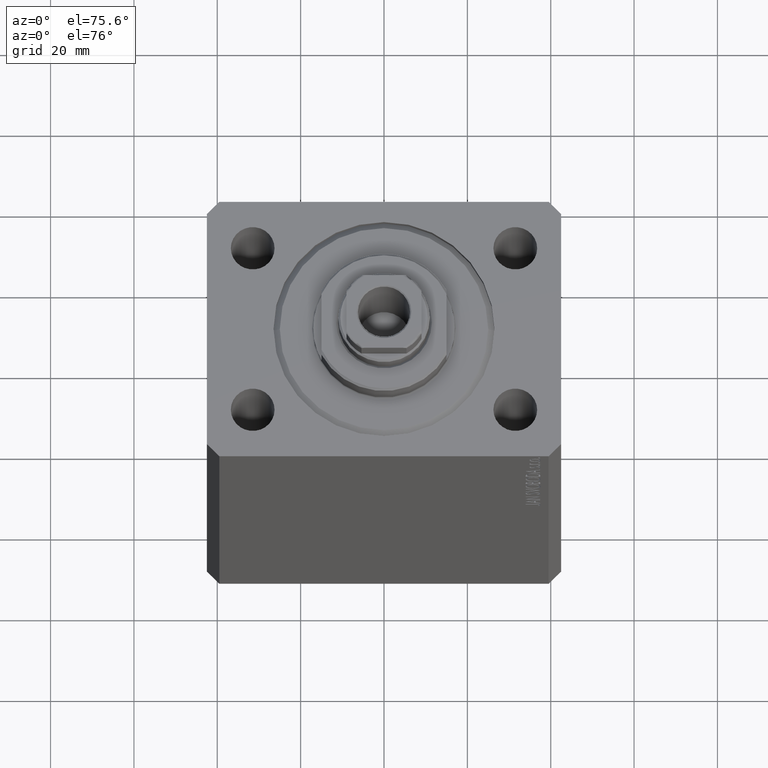
[diagram: clean part render]
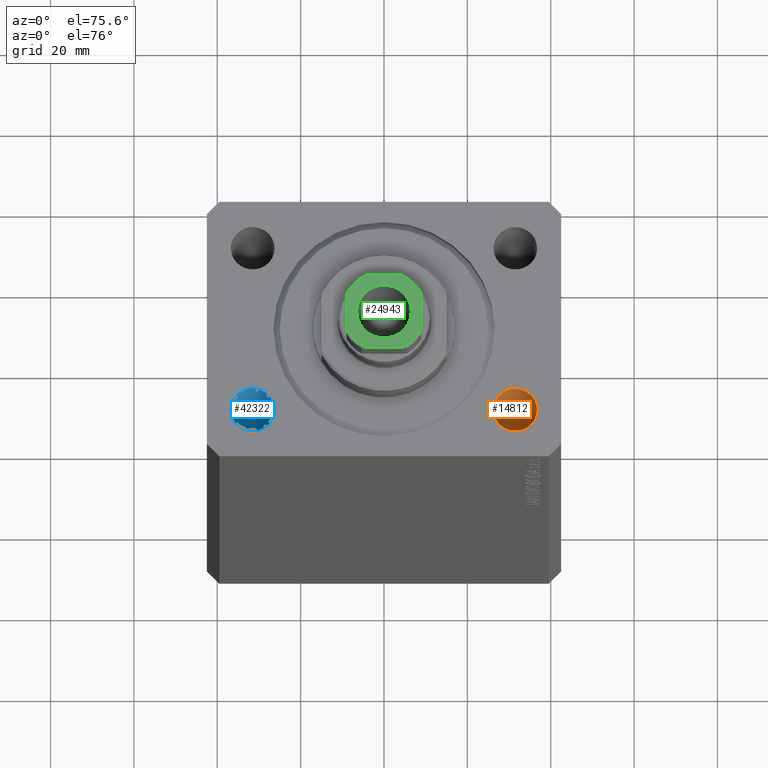
[diagram: same view with three faces highlighted in distinct colors, each labeled with its STEP entity id]
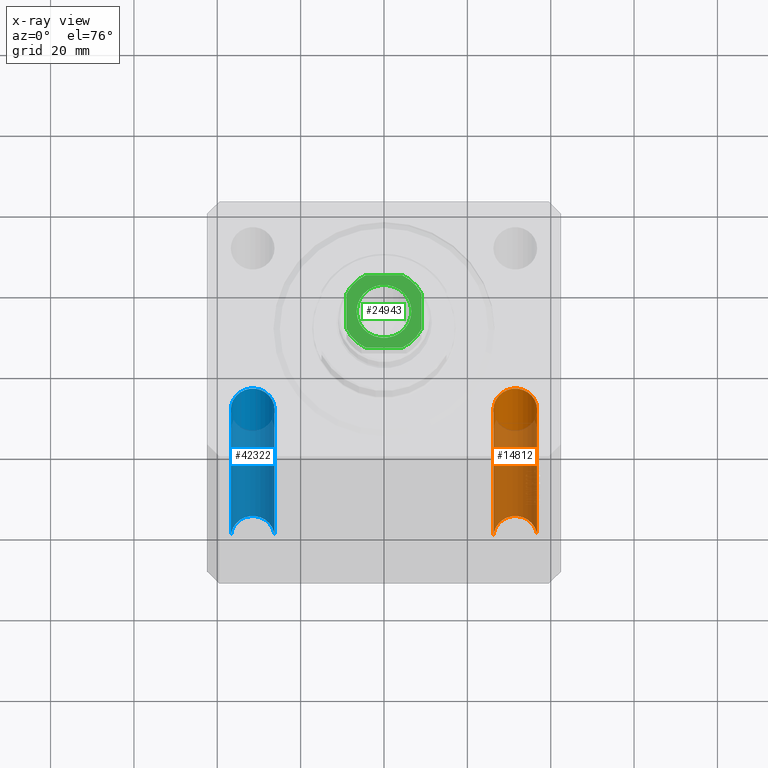
[diagram: x-ray of the same camera — body ghosted, the three highlighted faces saturated]
A machine part, auxiliary view with three faces highlighted in distinct colors.
The next image is the same camera in x-ray (body ghosted, the three faces saturated) — at least one of them is partly hidden behind the body in this view.
Their STEP definitions:

[orange] entity #14812 — the highlighted cylindrical surface (edge-blend (fillet) strip) has radius 5.25 mm, axis along (0, 0, 1).
#965 = CARTESIAN_POINT ( 'NONE',  ( 26.24999999999999645, -20.00000000000000355, 0.000000000000000000 ) ) ;
#1013 = CARTESIAN_POINT ( 'NONE',  ( 36.74999999999999289, -20.00000000000000355, -123.0000000000000000 ) ) ;
#2706 = AXIS2_PLACEMENT_3D ( 'NONE', #40275, #36450, #6242 ) ;
#3044 = ORIENTED_EDGE ( 'NONE', *, *, #9578, .T. ) ;
#4481 = EDGE_CURVE ( 'NONE', #10539, #15259, #22136, .T. ) ;
#4615 = VECTOR ( 'NONE', #38208, 1000.000000000000000 ) ;
#4817 = DIRECTION ( 'NONE',  ( -0.000000000000000000, -0.000000000000000000, 1.000000000000000000 ) ) ;
#5959 = DIRECTION ( 'NONE',  ( 1.000000000000000000, 0.000000000000000000, 0.000000000000000000 ) ) ;
#6242 = DIRECTION ( 'NONE',  ( 1.000000000000000000, 0.000000000000000000, 0.000000000000000000 ) ) ;
#7228 = DIRECTION ( 'NONE',  ( -0.000000000000000000, -0.000000000000000000, 1.000000000000000000 ) ) ;
#7766 = CARTESIAN_POINT ( 'NONE',  ( 36.74999999999999289, -20.00000000000000355, 0.000000000000000000 ) ) ;
#9578 = EDGE_CURVE ( 'NONE', #22942, #11323, #22257, .T. ) ;
#10539 = VERTEX_POINT ( 'NONE', #7766 ) ;
#10692 = LINE ( 'NONE', #24444, #4615 ) ;
#11323 = VERTEX_POINT ( 'NONE', #1013 ) ;
#11467 = AXIS2_PLACEMENT_3D ( 'NONE', #29979, #26821, #43730 ) ;
#13373 = CARTESIAN_POINT ( 'NONE',  ( 31.49999999999999289, -20.00000000000000355, -137.8492424049174758 ) ) ;
#13603 = CARTESIAN_POINT ( 'NONE',  ( 26.24999999999999645, -20.00000000000000355, -123.0000000000000000 ) ) ;
#14487 = EDGE_LOOP ( 'NONE', ( #28210, #3044, #38160, #24298 ) ) ;
#14812 = ADVANCED_FACE ( 'NONE', ( #27954 ), #23737, .F. ) ;
#15259 = VERTEX_POINT ( 'NONE', #965 ) ;
#15607 = CARTESIAN_POINT ( 'NONE',  ( 26.24999999999999645, -20.00000000000000355, -137.8492424049174758 ) ) ;
#16537 = AXIS2_PLACEMENT_3D ( 'NONE', #13373, #7228, #5959 ) ;
#22136 = CIRCLE ( 'NONE', #2706, 5.249999999999997335 ) ;
#22257 = CIRCLE ( 'NONE', #11467, 5.249999999999997335 ) ;
#22942 = VERTEX_POINT ( 'NONE', #13603 ) ;
#23737 = CYLINDRICAL_SURFACE ( 'NONE', #16537, 5.249999999999997335 ) ;
#24298 = ORIENTED_EDGE ( 'NONE', *, *, #4481, .T. ) ;
#24444 = CARTESIAN_POINT ( 'NONE',  ( 36.74999999999999289, -20.00000000000000355, -137.8492424049174758 ) ) ;
#25968 = LINE ( 'NONE', #15607, #30635 ) ;
#26821 = DIRECTION ( 'NONE',  ( -0.000000000000000000, -0.000000000000000000, -1.000000000000000000 ) ) ;
#27954 = FACE_OUTER_BOUND ( 'NONE', #14487, .T. ) ;
#28210 = ORIENTED_EDGE ( 'NONE', *, *, #35197, .F. ) ;
#29368 = EDGE_CURVE ( 'NONE', #11323, #10539, #10692, .T. ) ;
#29979 = CARTESIAN_POINT ( 'NONE',  ( 31.49999999999999289, -20.00000000000000355, -123.0000000000000000 ) ) ;
#30635 = VECTOR ( 'NONE', #4817, 1000.000000000000000 ) ;
#35197 = EDGE_CURVE ( 'NONE', #22942, #15259, #25968, .T. ) ;
#36450 = DIRECTION ( 'NONE',  ( 0.000000000000000000, 0.000000000000000000, 1.000000000000000000 ) ) ;
#38160 = ORIENTED_EDGE ( 'NONE', *, *, #29368, .T. ) ;
#38208 = DIRECTION ( 'NONE',  ( -0.000000000000000000, -0.000000000000000000, 1.000000000000000000 ) ) ;
#40275 = CARTESIAN_POINT ( 'NONE',  ( 31.49999999999999289, -20.00000000000000355, 0.000000000000000000 ) ) ;
#43730 = DIRECTION ( 'NONE',  ( 1.000000000000000000, 0.000000000000000000, 0.000000000000000000 ) ) ;

[blue] entity #42322 — the highlighted cylindrical surface (edge-blend (fillet) strip) has radius 5.25 mm, axis along (0, 0, 1).
#203 = CARTESIAN_POINT ( 'NONE',  ( -31.49999999999999289, -20.00000000000000355, 0.000000000000000000 ) ) ;
#622 = FACE_OUTER_BOUND ( 'NONE', #38710, .T. ) ;
#1482 = AXIS2_PLACEMENT_3D ( 'NONE', #203, #30405, #27251 ) ;
#3011 = VERTEX_POINT ( 'NONE', #22419 ) ;
#3536 = DIRECTION ( 'NONE',  ( -0.000000000000000000, -0.000000000000000000, 1.000000000000000000 ) ) ;
#3993 = LINE ( 'NONE', #34427, #39228 ) ;
#7177 = DIRECTION ( 'NONE',  ( 1.000000000000000000, 0.000000000000000000, 0.000000000000000000 ) ) ;
#8416 = CARTESIAN_POINT ( 'NONE',  ( -26.24999999999999289, -20.00000000000000355, 0.000000000000000000 ) ) ;
#9352 = EDGE_CURVE ( 'NONE', #3011, #29603, #25977, .T. ) ;
#9804 = VERTEX_POINT ( 'NONE', #18666 ) ;
#16713 = EDGE_CURVE ( 'NONE', #29380, #29603, #20922, .T. ) ;
#17086 = ORIENTED_EDGE ( 'NONE', *, *, #9352, .F. ) ;
#17310 = CYLINDRICAL_SURFACE ( 'NONE', #26745, 5.250000000000000888 ) ;
#18666 = CARTESIAN_POINT ( 'NONE',  ( -26.24999999999999289, -20.00000000000000355, -123.0000000000000000 ) ) ;
#20922 = CIRCLE ( 'NONE', #1482, 5.250000000000000888 ) ;
#21301 = ORIENTED_EDGE ( 'NONE', *, *, #34844, .T. ) ;
#22419 = CARTESIAN_POINT ( 'NONE',  ( -36.74999999999999289, -20.00000000000000355, -123.0000000000000000 ) ) ;
#23852 = DIRECTION ( 'NONE',  ( -0.000000000000000000, -0.000000000000000000, 1.000000000000000000 ) ) ;
#24527 = DIRECTION ( 'NONE',  ( 1.000000000000000000, 0.000000000000000000, 0.000000000000000000 ) ) ;
#25977 = LINE ( 'NONE', #33878, #40268 ) ;
#26745 = AXIS2_PLACEMENT_3D ( 'NONE', #38066, #23852, #7177 ) ;
#27251 = DIRECTION ( 'NONE',  ( 1.000000000000000000, 0.000000000000000000, 0.000000000000000000 ) ) ;
#28105 = AXIS2_PLACEMENT_3D ( 'NONE', #31515, #31739, #24527 ) ;
#29380 = VERTEX_POINT ( 'NONE', #8416 ) ;
#29603 = VERTEX_POINT ( 'NONE', #33428 ) ;
#30405 = DIRECTION ( 'NONE',  ( 0.000000000000000000, 0.000000000000000000, 1.000000000000000000 ) ) ;
#31515 = CARTESIAN_POINT ( 'NONE',  ( -31.49999999999999289, -20.00000000000000355, -123.0000000000000000 ) ) ;
#31739 = DIRECTION ( 'NONE',  ( -0.000000000000000000, -0.000000000000000000, -1.000000000000000000 ) ) ;
#33428 = CARTESIAN_POINT ( 'NONE',  ( -36.74999999999999289, -20.00000000000000355, 0.000000000000000000 ) ) ;
#33647 = DIRECTION ( 'NONE',  ( -0.000000000000000000, -0.000000000000000000, 1.000000000000000000 ) ) ;
#33878 = CARTESIAN_POINT ( 'NONE',  ( -36.74999999999999289, -20.00000000000000355, -137.8492424049174758 ) ) ;
#34427 = CARTESIAN_POINT ( 'NONE',  ( -26.24999999999999289, -20.00000000000000355, -137.8492424049174758 ) ) ;
#34844 = EDGE_CURVE ( 'NONE', #9804, #29380, #3993, .T. ) ;
#36733 = CIRCLE ( 'NONE', #28105, 5.250000000000000888 ) ;
#37935 = EDGE_CURVE ( 'NONE', #3011, #9804, #36733, .T. ) ;
#38066 = CARTESIAN_POINT ( 'NONE',  ( -31.49999999999999289, -20.00000000000000355, -137.8492424049174758 ) ) ;
#38710 = EDGE_LOOP ( 'NONE', ( #17086, #42095, #21301, #40191 ) ) ;
#39228 = VECTOR ( 'NONE', #3536, 1000.000000000000000 ) ;
#40191 = ORIENTED_EDGE ( 'NONE', *, *, #16713, .T. ) ;
#40268 = VECTOR ( 'NONE', #33647, 1000.000000000000000 ) ;
#42095 = ORIENTED_EDGE ( 'NONE', *, *, #37935, .T. ) ;
#42322 = ADVANCED_FACE ( 'NONE', ( #622 ), #17310, .F. ) ;

[green] entity #24943 — the highlighted planar face has unit normal (0, 0, 1).
#432 = EDGE_CURVE ( 'NONE', #958, #33512, #28217, .T. ) ;
#740 = ORIENTED_EDGE ( 'NONE', *, *, #12059, .T. ) ;
#794 = DIRECTION ( 'NONE',  ( -9.637352644315595243E-17, 1.000000000000000000, -0.000000000000000000 ) ) ;
#958 = VERTEX_POINT ( 'NONE', #4309 ) ;
#990 = CARTESIAN_POINT ( 'NONE',  ( 0.000000000000000000, 0.000000000000000000, 128.5999999999999943 ) ) ;
#1648 = CARTESIAN_POINT ( 'NONE',  ( 4.358898943540671311, -9.000000000000001776, 128.5999999999999943 ) ) ;
#4012 = ORIENTED_EDGE ( 'NONE', *, *, #20982, .T. ) ;
#4309 = CARTESIAN_POINT ( 'NONE',  ( -6.549999999999971401, 8.021436534415127749E-16, 128.5999999999999943 ) ) ;
#4484 = CARTESIAN_POINT ( 'NONE',  ( -9.000000000000000000, 8.999999999999998224, 128.5999999999999943 ) ) ;
#4504 = CARTESIAN_POINT ( 'NONE',  ( -9.000000000000000000, 4.358898943540674864, 128.5999999999999943 ) ) ;
#4517 = ORIENTED_EDGE ( 'NONE', *, *, #17723, .T. ) ;
#4944 = ORIENTED_EDGE ( 'NONE', *, *, #37969, .T. ) ;
#4972 = CIRCLE ( 'NONE', #33767, 10.00000000000000000 ) ;
#5070 = VECTOR ( 'NONE', #10772, 1000.000000000000000 ) ;
#6039 = AXIS2_PLACEMENT_3D ( 'NONE', #31453, #38225, #24460 ) ;
#6238 = VERTEX_POINT ( 'NONE', #17335 ) ;
#6315 = EDGE_CURVE ( 'NONE', #22883, #40966, #38533, .T. ) ;
#6707 = AXIS2_PLACEMENT_3D ( 'NONE', #19579, #15521, #26335 ) ;
#7126 = CARTESIAN_POINT ( 'NONE',  ( 0.000000000000000000, 0.000000000000000000, 128.5999999999999943 ) ) ;
#7355 = CIRCLE ( 'NONE', #15992, 10.00000000000000000 ) ;
#7979 = DIRECTION ( 'NONE',  ( 1.000000000000000000, 0.000000000000000000, 0.000000000000000000 ) ) ;
#8086 = AXIS2_PLACEMENT_3D ( 'NONE', #22742, #12374, #23195 ) ;
#8415 = VERTEX_POINT ( 'NONE', #1648 ) ;
#8475 = EDGE_CURVE ( 'NONE', #8415, #29083, #4972, .T. ) ;
#9123 = CARTESIAN_POINT ( 'NONE',  ( -9.000000000000000000, 8.999999999999998224, 128.5999999999999943 ) ) ;
#9721 = CARTESIAN_POINT ( 'NONE',  ( -9.000000000000000000, -4.358898943540675752, 128.5999999999999943 ) ) ;
#10105 = CARTESIAN_POINT ( 'NONE',  ( 9.000000000000000000, 8.999999999999998224, 128.5999999999999943 ) ) ;
#10276 = CIRCLE ( 'NONE', #28963, 6.549999999999971401 ) ;
#10772 = DIRECTION ( 'NONE',  ( 1.000000000000000000, 0.000000000000000000, 0.000000000000000000 ) ) ;
#11375 = FACE_BOUND ( 'NONE', #19628, .T. ) ;
#12059 = EDGE_CURVE ( 'NONE', #29083, #6238, #13270, .T. ) ;
#12374 = DIRECTION ( 'NONE',  ( 0.000000000000000000, -0.000000000000000000, -1.000000000000000000 ) ) ;
#12868 = VECTOR ( 'NONE', #794, 1000.000000000000000 ) ;
#13270 = LINE ( 'NONE', #10105, #12868 ) ;
#14270 = CARTESIAN_POINT ( 'NONE',  ( 4.358898943540677529, 8.999999999999998224, 128.5999999999999943 ) ) ;
#14307 = PLANE ( 'NONE',  #6039 ) ;
#14847 = DIRECTION ( 'NONE',  ( -1.000000000000000000, -0.000000000000000000, -0.000000000000000000 ) ) ;
#15521 = DIRECTION ( 'NONE',  ( -0.000000000000000000, 0.000000000000000000, 1.000000000000000000 ) ) ;
#15781 = EDGE_LOOP ( 'NONE', ( #41571, #4517, #4944, #20142, #740, #4012, #19800, #28012 ) ) ;
#15992 = AXIS2_PLACEMENT_3D ( 'NONE', #40034, #40706, #30097 ) ;
#17243 = EDGE_CURVE ( 'NONE', #24737, #39579, #21987, .T. ) ;
#17335 = CARTESIAN_POINT ( 'NONE',  ( 9.000000000000000000, 4.358898943540675752, 128.5999999999999943 ) ) ;
#17723 = EDGE_CURVE ( 'NONE', #39579, #38819, #25987, .T. ) ;
#19579 = CARTESIAN_POINT ( 'NONE',  ( 0.000000000000000000, 0.000000000000000000, 128.5999999999999943 ) ) ;
#19628 = EDGE_LOOP ( 'NONE', ( #20169, #32565 ) ) ;
#19800 = ORIENTED_EDGE ( 'NONE', *, *, #6315, .T. ) ;
#20142 = ORIENTED_EDGE ( 'NONE', *, *, #8475, .T. ) ;
#20169 = ORIENTED_EDGE ( 'NONE', *, *, #22651, .T. ) ;
#20982 = EDGE_CURVE ( 'NONE', #6238, #22883, #7355, .T. ) ;
#21802 = LINE ( 'NONE', #24307, #5070 ) ;
#21987 = LINE ( 'NONE', #9123, #38216 ) ;
#22651 = EDGE_CURVE ( 'NONE', #33512, #958, #10276, .T. ) ;
#22742 = CARTESIAN_POINT ( 'NONE',  ( 0.000000000000000000, 0.000000000000000000, 128.5999999999999943 ) ) ;
#22883 = VERTEX_POINT ( 'NONE', #14270 ) ;
#23195 = DIRECTION ( 'NONE',  ( 1.000000000000000000, 0.000000000000000000, 0.000000000000000000 ) ) ;
#24307 = CARTESIAN_POINT ( 'NONE',  ( -8.999999999999998224, -9.000000000000001776, 128.5999999999999943 ) ) ;
#24460 = DIRECTION ( 'NONE',  ( 1.000000000000000000, 0.000000000000000000, 0.000000000000000000 ) ) ;
#24554 = AXIS2_PLACEMENT_3D ( 'NONE', #35134, #32201, #28592 ) ;
#24737 = VERTEX_POINT ( 'NONE', #4504 ) ;
#24943 = ADVANCED_FACE ( 'NONE', ( #11375, #27851 ), #14307, .T. ) ;
#25364 = DIRECTION ( 'NONE',  ( 0.000000000000000000, -0.000000000000000000, -1.000000000000000000 ) ) ;
#25987 = CIRCLE ( 'NONE', #24554, 10.00000000000000000 ) ;
#26335 = DIRECTION ( 'NONE',  ( 1.000000000000000000, 0.000000000000000000, 0.000000000000000000 ) ) ;
#27554 = EDGE_CURVE ( 'NONE', #40966, #24737, #39798, .T. ) ;
#27851 = FACE_OUTER_BOUND ( 'NONE', #15781, .T. ) ;
#28012 = ORIENTED_EDGE ( 'NONE', *, *, #27554, .T. ) ;
#28217 = CIRCLE ( 'NONE', #8086, 6.549999999999971401 ) ;
#28592 = DIRECTION ( 'NONE',  ( 1.000000000000000000, 0.000000000000000000, 0.000000000000000000 ) ) ;
#28963 = AXIS2_PLACEMENT_3D ( 'NONE', #7126, #25364, #39540 ) ;
#29083 = VERTEX_POINT ( 'NONE', #29866 ) ;
#29866 = CARTESIAN_POINT ( 'NONE',  ( 9.000000000000001776, -4.358898943540675752, 128.5999999999999943 ) ) ;
#29906 = CARTESIAN_POINT ( 'NONE',  ( -4.358898943540678417, 8.999999999999998224, 128.5999999999999943 ) ) ;
#30097 = DIRECTION ( 'NONE',  ( 1.000000000000000000, 0.000000000000000000, 0.000000000000000000 ) ) ;
#31453 = CARTESIAN_POINT ( 'NONE',  ( 0.000000000000000000, 0.000000000000000000, 128.5999999999999943 ) ) ;
#32201 = DIRECTION ( 'NONE',  ( -0.000000000000000000, 0.000000000000000000, 1.000000000000000000 ) ) ;
#32565 = ORIENTED_EDGE ( 'NONE', *, *, #432, .T. ) ;
#33512 = VERTEX_POINT ( 'NONE', #35593 ) ;
#33767 = AXIS2_PLACEMENT_3D ( 'NONE', #990, #38859, #7979 ) ;
#35134 = CARTESIAN_POINT ( 'NONE',  ( 0.000000000000000000, 0.000000000000000000, 128.5999999999999943 ) ) ;
#35352 = CARTESIAN_POINT ( 'NONE',  ( -4.358898943540671311, -9.000000000000001776, 128.5999999999999943 ) ) ;
#35593 = CARTESIAN_POINT ( 'NONE',  ( 6.549999999999971401, 0.000000000000000000, 128.5999999999999943 ) ) ;
#37969 = EDGE_CURVE ( 'NONE', #38819, #8415, #21802, .T. ) ;
#38216 = VECTOR ( 'NONE', #42727, 1000.000000000000000 ) ;
#38225 = DIRECTION ( 'NONE',  ( -0.000000000000000000, 0.000000000000000000, 1.000000000000000000 ) ) ;
#38533 = LINE ( 'NONE', #4484, #40201 ) ;
#38819 = VERTEX_POINT ( 'NONE', #35352 ) ;
#38859 = DIRECTION ( 'NONE',  ( -0.000000000000000000, 0.000000000000000000, 1.000000000000000000 ) ) ;
#39540 = DIRECTION ( 'NONE',  ( 1.000000000000000000, 0.000000000000000000, 0.000000000000000000 ) ) ;
#39579 = VERTEX_POINT ( 'NONE', #9721 ) ;
#39798 = CIRCLE ( 'NONE', #6707, 10.00000000000000000 ) ;
#40034 = CARTESIAN_POINT ( 'NONE',  ( 0.000000000000000000, 0.000000000000000000, 128.5999999999999943 ) ) ;
#40201 = VECTOR ( 'NONE', #14847, 1000.000000000000000 ) ;
#40706 = DIRECTION ( 'NONE',  ( -0.000000000000000000, 0.000000000000000000, 1.000000000000000000 ) ) ;
#40966 = VERTEX_POINT ( 'NONE', #29906 ) ;
#41571 = ORIENTED_EDGE ( 'NONE', *, *, #17243, .T. ) ;
#42727 = DIRECTION ( 'NONE',  ( 9.637352644315595243E-17, -1.000000000000000000, 0.000000000000000000 ) ) ;